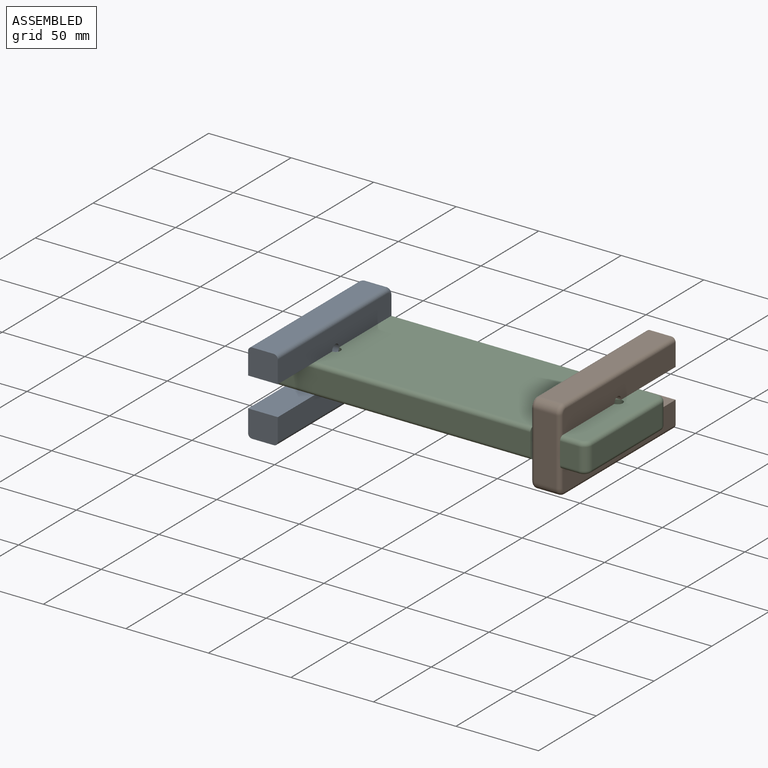
[diagram: assembled view]
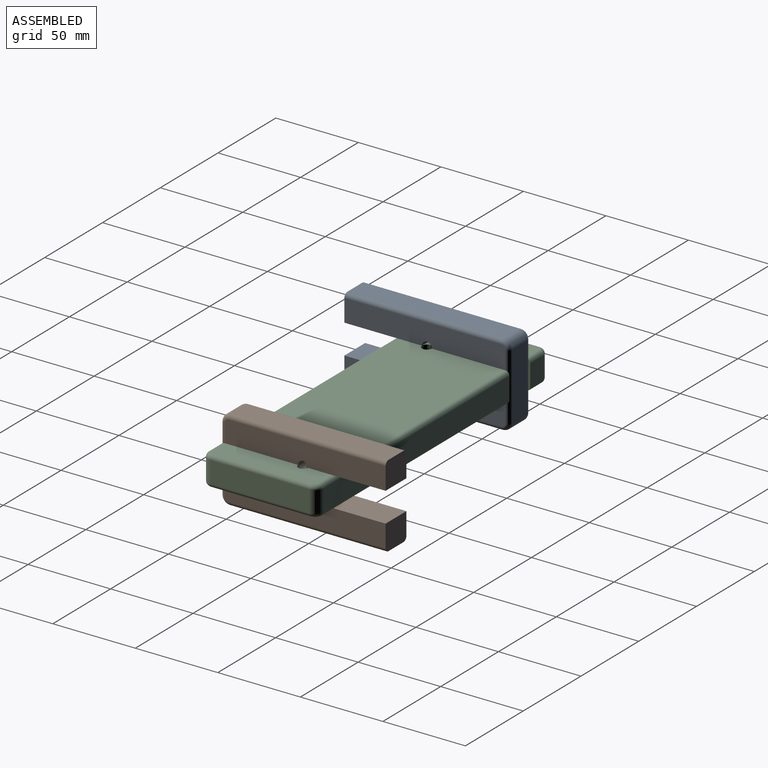
[diagram: assembled view, second angle]
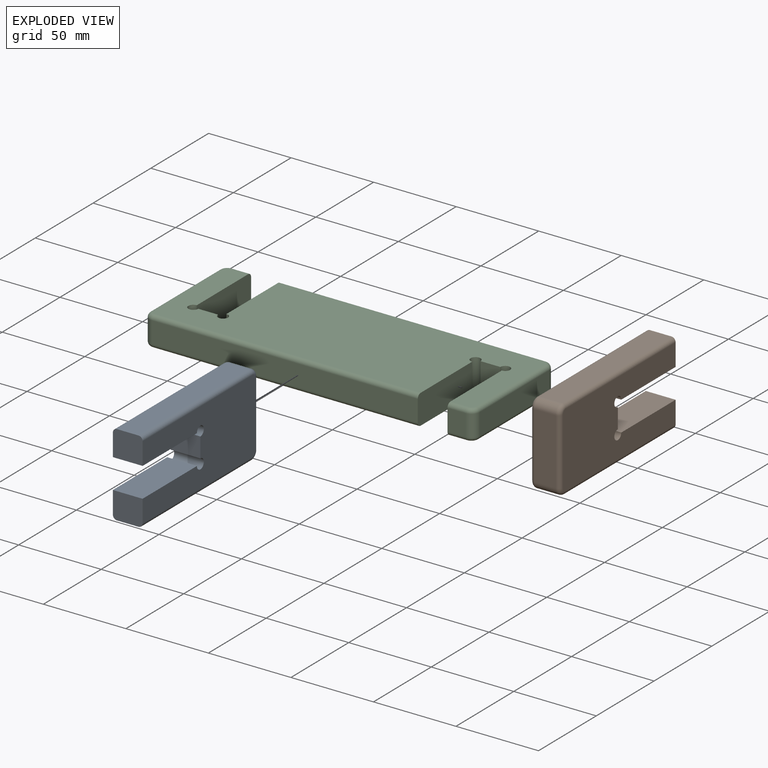
[diagram: exploded view]
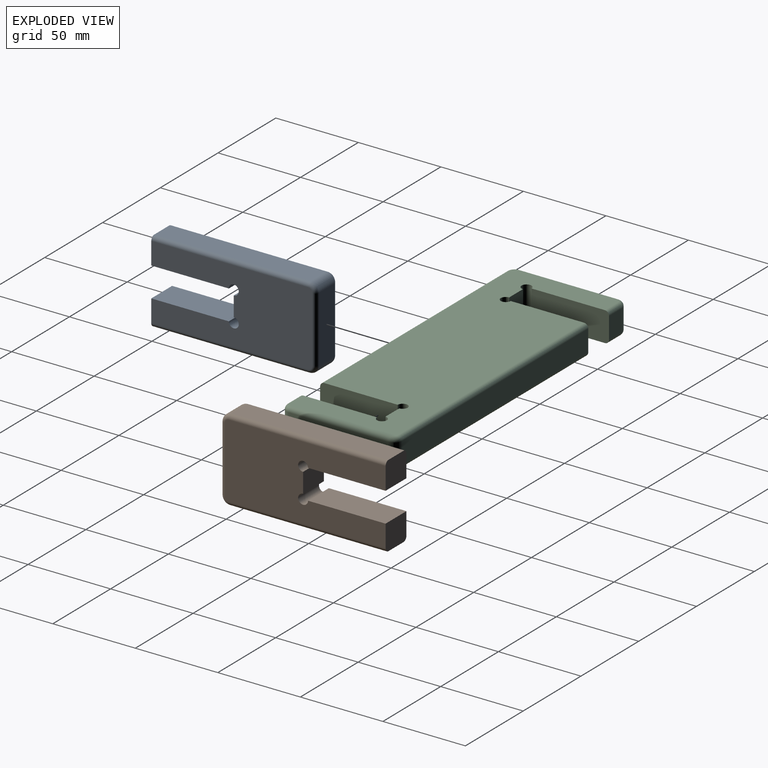
[diagram: exploded view, second angle]
ASSEMBLY  parts=3 mates=2
PART A: 24 faces, bbox 100.4x50.8x18 mm
  f0: plane 47x18mm, normal (0,1,0), area 846mm2, adj f1,f9,f10,f11
  f1: cylinder r=3mm len=18mm, axis (0,0,-1), area 254.5mm2, adj f0,f2,f10,f11
  f2: plane 18x12mm, normal (1,0,0), area 216mm2, adj f1,f3,f10,f11
  f3: cylinder r=3mm len=18mm, axis (0,0,-1), area 254.5mm2, adj f2,f4,f10,f11
  f4: plane 47x18mm, normal (0,-1,0), area 846mm2, adj f3,f5,f10,f11
  f5: plane 18x16mm, normal (1,0,0), area 285.3mm2, adj f4,f6,f10,f11,f18,f23
  f6: plane 95x13mm, normal (0,1,0), area 1235mm2, adj f5,f12,f18,f23
  f7: plane 40x13mm, normal (-1,0,0), area 520mm2, adj f12,f13,f16,f21
  f8: plane 95x13mm, normal (0,-1,0), area 1235mm2, adj f9,f13,f14,f19
  f9: plane 18x16mm, normal (1,0,0), area 285.3mm2, adj f0,f8,f10,f11,f14,f19
  f10: plane 97.5x45mm, normal (0,0,1), area 3442.4mm2, adj f0,f1,f2,f3,f4,f5,f9,f14
  f11: plane 97.5x45mm, normal (0,0,-1), area 3442.4mm2, adj f0,f1,f2,f3,f4,f5,f9,f19
  f12: cylinder r=5mm len=13mm, axis (0,0,-1), area 102.1mm2, adj f6,f7,f17,f22
  f13: cylinder r=5mm len=13mm, axis (0,0,1), area 102.1mm2, adj f7,f8,f15,f20
  f14: cylinder r=2.5mm len=95mm, axis (-1,0,0), area 373.1mm2, adj f8,f9,f10,f15
  f15: torus R=2.5mm, axis (0,0,1), area 25.2mm2, adj f10,f13,f14,f16
  f16: cylinder r=2.5mm len=40mm, axis (0,1,0), area 157.1mm2, adj f7,f10,f15,f17
  f17: torus R=2.5mm, axis (0,0,1), area 25.2mm2, adj f10,f12,f16,f18
  f18: cylinder r=2.5mm len=95mm, axis (1,0,0), area 373.1mm2, adj f5,f6,f10,f17
  f19: cylinder r=2.5mm len=95mm, axis (1,0,0), area 373.1mm2, adj f8,f9,f11,f20
  f20: torus R=2.5mm, axis (0,0,1), area 25.2mm2, adj f11,f13,f19,f21
  f21: cylinder r=2.5mm len=40mm, axis (0,-1,0), area 157.1mm2, adj f7,f11,f20,f22
  f22: torus R=2.5mm, axis (0,0,1), area 25.2mm2, adj f11,f12,f21,f23
  f23: cylinder r=2.5mm len=95mm, axis (-1,0,0), area 373.1mm2, adj f5,f6,f11,f22
PART B: same geometry as A
PART C: 42 faces, bbox 200.8x70.8x18 mm
  f0: plane 18x12mm, normal (0,-1,0), area 216mm2, adj f1,f15,f16,f17
  f1: cylinder r=3mm len=18mm, axis (0,0,-1), area 254.5mm2, adj f0,f2,f16,f17
  f2: plane 47x18mm, normal (-1,0,0), area 843.3mm2, adj f1,f3,f16,f17,f36,f37
  f3: plane 13x11mm, normal (0,-1,0), area 143mm2, adj f2,f18,f36,f37
  f4: plane 60x13mm, normal (1,0,0), area 780mm2, adj f18,f19,f34,f39
  f5: plane 161x13mm, normal (0,1,0), area 2093mm2, adj f6,f19,f32,f41
  f6: plane 47x18mm, normal (-1,0,0), area 843.3mm2, adj f5,f7,f16,f17,f32,f41
  f7: cylinder r=3mm len=18mm, axis (0,0,-1), area 254.5mm2, adj f6,f8,f16,f17
  f8: plane 18x12mm, normal (0,1,0), area 216mm2, adj f7,f9,f16,f17
  f9: cylinder r=3mm len=18mm, axis (0,0,-1), area 254.5mm2, adj f8,f10,f16,f17
  f10: plane 47x18mm, normal (1,0,0), area 843.3mm2, adj f9,f11,f16,f17,f26,f31
  f11: plane 13x11mm, normal (0,1,0), area 143mm2, adj f10,f20,f26,f31
  f12: plane 60x13mm, normal (-1,0,0), area 780mm2, adj f20,f21,f24,f29
  f13: plane 161x13mm, normal (0,-1,0), area 2093mm2, adj f14,f21,f22,f27
  f14: plane 47x18mm, normal (1,0,0), area 843.3mm2, adj f13,f15,f16,f17,f22,f27
  f15: cylinder r=3mm len=18mm, axis (0,0,-1), area 254.5mm2, adj f0,f14,f16,f17
  f16: plane 195x65mm, normal (0,0,1), area 10874.8mm2, adj f0,f1,f2,f6,f7,f8,f9,f10
  f17: plane 195x65mm, normal (0,0,-1), area 10874.8mm2, adj f0,f1,f2,f6,f7,f8,f9,f10
  f18: cylinder r=5mm len=13mm, axis (0,0,1), area 102.1mm2, adj f3,f4,f35,f38
  f19: cylinder r=5mm len=13mm, axis (0,0,-1), area 102.1mm2, adj f4,f5,f33,f40
  f20: cylinder r=5mm len=13mm, axis (0,0,-1), area 102.1mm2, adj f11,f12,f25,f30
  f21: cylinder r=5mm len=13mm, axis (0,0,1), area 102.1mm2, adj f12,f13,f23,f28
  f22: cylinder r=2.5mm len=161mm, axis (-1,0,0), area 632.2mm2, adj f13,f14,f16,f23
  f23: torus R=2.5mm, axis (0,0,1), area 25.2mm2, adj f16,f21,f22,f24
  f24: cylinder r=2.5mm len=60mm, axis (0,1,0), area 235.6mm2, adj f12,f16,f23,f25
  f25: torus R=2.5mm, axis (0,0,1), area 25.2mm2, adj f16,f20,f24,f26
  f26: cylinder r=2.5mm len=11mm, axis (1,0,0), area 43.2mm2, adj f10,f11,f16,f25
  f27: cylinder r=2.5mm len=161mm, axis (1,0,0), area 632.2mm2, adj f13,f14,f17,f28
  f28: torus R=2.5mm, axis (0,0,1), area 25.2mm2, adj f17,f21,f27,f29
  f29: cylinder r=2.5mm len=60mm, axis (0,-1,0), area 235.6mm2, adj f12,f17,f28,f30
  f30: torus R=2.5mm, axis (0,0,1), area 25.2mm2, adj f17,f20,f29,f31
  f31: cylinder r=2.5mm len=11mm, axis (-1,0,0), area 43.2mm2, adj f10,f11,f17,f30
  f32: cylinder r=2.5mm len=161mm, axis (1,0,0), area 632.2mm2, adj f5,f6,f16,f33
  f33: torus R=2.5mm, axis (0,0,1), area 25.2mm2, adj f16,f19,f32,f34
  f34: cylinder r=2.5mm len=60mm, axis (0,-1,0), area 235.6mm2, adj f4,f16,f33,f35
  f35: torus R=2.5mm, axis (0,0,1), area 25.2mm2, adj f16,f18,f34,f36
  f36: cylinder r=2.5mm len=11mm, axis (-1,0,0), area 43.2mm2, adj f2,f3,f16,f35
  f37: cylinder r=2.5mm len=11mm, axis (1,0,0), area 43.2mm2, adj f2,f3,f17,f38
  f38: torus R=2.5mm, axis (0,0,1), area 25.2mm2, adj f17,f18,f37,f39
  f39: cylinder r=2.5mm len=60mm, axis (0,1,0), area 235.6mm2, adj f4,f17,f38,f40
  f40: torus R=2.5mm, axis (0,0,1), area 25.2mm2, adj f17,f19,f39,f41
  f41: cylinder r=2.5mm len=161mm, axis (-1,0,0), area 632.2mm2, adj f5,f6,f17,f40
PLACE A rot(axis=(-0.58,0.58,-0.58),120deg) t=(-74.47,162.11,110.78)mm
PLACE B rot(axis=(-0.58,-0.58,0.58),120deg) t=(93.53,92.11,110.78)mm
PLACE C t=(-90.47,92.11,76.78)mm
MATE fastened C.f8 <-> A.f2  axis (0,1,0) through (-65.47,112.11,85.78)mm
MATE fastened B.f2 <-> C.f0  axis (0,1,0) through (84.53,142.11,85.78)mm
